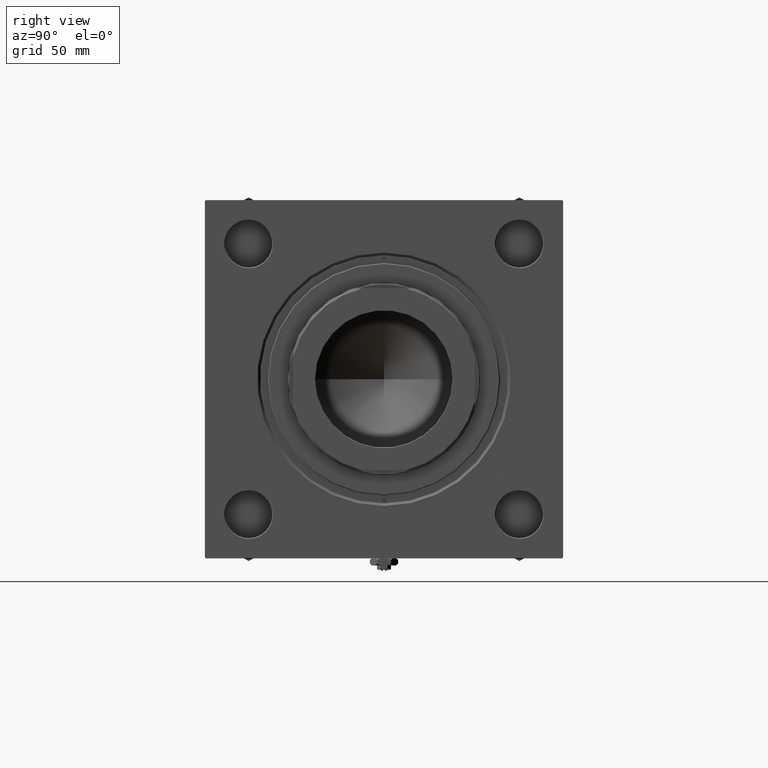
[diagram: clean part render]
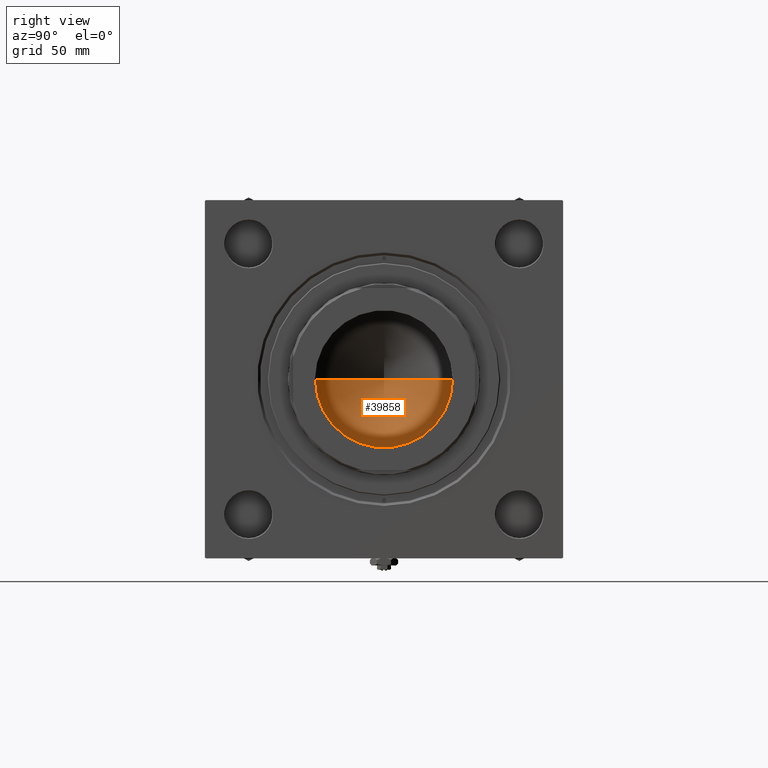
[diagram: same view with one face highlighted and labeled with its STEP entity id]
A machine part, right view. The second image highlights one B-rep face of the part: STEP entity #39858.
In plain terms, the highlighted conical surface has half-angle 59 deg.
Its self-contained STEP definition (entity closure, byte-faithful):
#4651 = DIRECTION ( 'NONE',  ( 0.8571673007021116675, 0.000000000000000000, 0.5150380749100552658 ) ) ;
#7156 = EDGE_CURVE ( 'NONE', #16595, #32604, #31693, .T. ) ;
#7742 = DIRECTION ( 'NONE',  ( 1.000000000000000000, 0.000000000000000000, 0.000000000000000000 ) ) ;
#9966 = VECTOR ( 'NONE', #4651, 1000.000000000000000 ) ;
#10194 = CIRCLE ( 'NONE', #16993, 39.24999999999998579 ) ;
#10767 = FACE_OUTER_BOUND ( 'NONE', #25731, .T. ) ;
#12920 = CARTESIAN_POINT ( 'NONE',  ( 39.24999999999998579, 0.000000000000000000, 104.9999999999999858 ) ) ;
#15750 = CARTESIAN_POINT ( 'NONE',  ( -39.24999999999998579, 4.806738686653360087E-15, 104.9999999999999858 ) ) ;
#15751 = CARTESIAN_POINT ( 'NONE',  ( 0.000000000000000000, 0.000000000000000000, 104.9999999999999858 ) ) ;
#16595 = VERTEX_POINT ( 'NONE', #17213 ) ;
#16993 = AXIS2_PLACEMENT_3D ( 'NONE', #15751, #19208, #7742 ) ;
#17213 = CARTESIAN_POINT ( 'NONE',  ( -3.318838890392715616E-14, 0.000000000000000000, 81.41622070316820725 ) ) ;
#19208 = DIRECTION ( 'NONE',  ( -0.000000000000000000, -0.000000000000000000, 1.000000000000000000 ) ) ;
#22047 = VERTEX_POINT ( 'NONE', #25543 ) ;
#25543 = CARTESIAN_POINT ( 'NONE',  ( 39.24999999999998579, 0.000000000000000000, 104.9999999999999858 ) ) ;
#25731 = EDGE_LOOP ( 'NONE', ( #33365, #29448, #33479 ) ) ;
#26465 = DIRECTION ( 'NONE',  ( -0.000000000000000000, -0.000000000000000000, 1.000000000000000000 ) ) ;
#29448 = ORIENTED_EDGE ( 'NONE', *, *, #33632, .T. ) ;
#31693 = LINE ( 'NONE', #15750, #36877 ) ;
#32604 = VERTEX_POINT ( 'NONE', #43512 ) ;
#33365 = ORIENTED_EDGE ( 'NONE', *, *, #7156, .F. ) ;
#33479 = ORIENTED_EDGE ( 'NONE', *, *, #40391, .T. ) ;
#33632 = EDGE_CURVE ( 'NONE', #16595, #22047, #45857, .T. ) ;
#34837 = AXIS2_PLACEMENT_3D ( 'NONE', #38959, #26465, #51427 ) ;
#36877 = VECTOR ( 'NONE', #47888, 1000.000000000000000 ) ;
#38959 = CARTESIAN_POINT ( 'NONE',  ( 0.000000000000000000, 0.000000000000000000, 104.9999999999999858 ) ) ;
#39858 = ADVANCED_FACE ( 'NONE', ( #10767 ), #50957, .F. ) ;
#40391 = EDGE_CURVE ( 'NONE', #22047, #32604, #10194, .T. ) ;
#43512 = CARTESIAN_POINT ( 'NONE',  ( -39.24999999999998579, 4.806738686653360087E-15, 104.9999999999999858 ) ) ;
#45857 = LINE ( 'NONE', #12920, #9966 ) ;
#47888 = DIRECTION ( 'NONE',  ( -0.8571673007021116675, 1.049727191138617833E-16, 0.5150380749100552658 ) ) ;
#50957 = CONICAL_SURFACE ( 'NONE', #34837, 39.24999999999998579, 1.029744258676653201 ) ;
#51427 = DIRECTION ( 'NONE',  ( 1.000000000000000000, 0.000000000000000000, 0.000000000000000000 ) ) ;